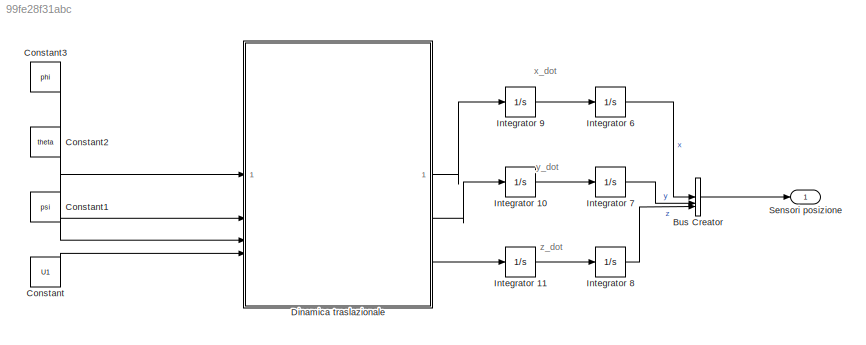
MODEL slx_99fe28f31abc
KIND model
CONFIG AbsTol = auto
CONFIG EnableMultiTasking = off
CONFIG FixedStep = auto
CONFIG MaxStep = auto
CONFIG MinStep = auto
CONFIG RelTol = 1e-3
CONFIG SampleTimeConstraint = Unconstrained
CONFIG SolverName = VariableStepAuto
CONFIG StartTime = 0.0
CONFIG StopTime = 10.0
BLOCK [BusCreator] Bus Creator
  DisplayOption = bar
  InheritFromInputs = on
  Inputs = 3
BLOCK [Constant] Constant
  Value = U1
BLOCK [Constant] Constant1
  Value = psi
BLOCK [Constant] Constant2
  Value = theta
BLOCK [Constant] Constant3
  Value = phi
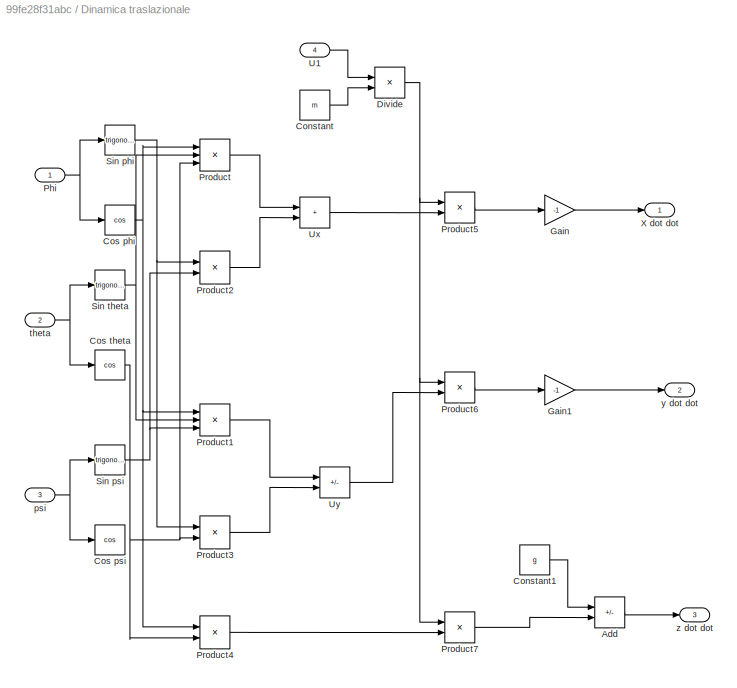
BLOCK [SubSystem] Dinamica traslazionale
BLOCK [Sum] Dinamica traslazionale/Add
  IconShape = rectangular
  Inputs = +-
BLOCK [Constant] Dinamica traslazionale/Constant
  Value = m
BLOCK [Constant] Dinamica traslazionale/Constant1
  Value = g
BLOCK [Trigonometry] Dinamica traslazionale/Cos phi
  Operator = cos
BLOCK [Trigonometry] Dinamica traslazionale/Cos psi
  Operator = cos
BLOCK [Trigonometry] Dinamica traslazionale/Cos theta
  Operator = cos
BLOCK [Product] Dinamica traslazionale/Divide
  Inputs = */
BLOCK [Gain] Dinamica traslazionale/Gain
  Gain = -1
BLOCK [Gain] Dinamica traslazionale/Gain1
  Gain = -1
BLOCK [Inport] Dinamica traslazionale/Phi
BLOCK [Product] Dinamica traslazionale/Product
  Inputs = 3
BLOCK [Product] Dinamica traslazionale/Product1
  Inputs = 3
BLOCK [Product] Dinamica traslazionale/Product2
BLOCK [Product] Dinamica traslazionale/Product3
BLOCK [Product] Dinamica traslazionale/Product4
BLOCK [Product] Dinamica traslazionale/Product5
BLOCK [Product] Dinamica traslazionale/Product6
BLOCK [Product] Dinamica traslazionale/Product7
BLOCK [Trigonometry] Dinamica traslazionale/Sin phi
BLOCK [Trigonometry] Dinamica traslazionale/Sin psi
BLOCK [Trigonometry] Dinamica traslazionale/Sin theta
BLOCK [Inport] Dinamica traslazionale/U1
  Port = 4
BLOCK [Sum] Dinamica traslazionale/Ux
  IconShape = rectangular
BLOCK [Sum] Dinamica traslazionale/Uy
  IconShape = rectangular
  Inputs = +-
BLOCK [Outport] Dinamica traslazionale/X dot dot
BLOCK [Inport] Dinamica traslazionale/psi
  Port = 3
BLOCK [Inport] Dinamica traslazionale/theta
  Port = 2
BLOCK [Outport] Dinamica traslazionale/y dot dot
  Port = 2
BLOCK [Outport] Dinamica traslazionale/z dot dot
  Port = 3
BLOCK [Integrator] Integrator 10
BLOCK [Integrator] Integrator 11
BLOCK [Integrator] Integrator 6
  ContinuousStateAttributes = 'X_out'
BLOCK [Integrator] Integrator 7
  ContinuousStateAttributes = 'Y_out'
BLOCK [Integrator] Integrator 8
  ContinuousStateAttributes = 'Z_out'
BLOCK [Integrator] Integrator 9
BLOCK [Outport] Sensori posizione
ANNOTATION (root): x_dot
ANNOTATION (root): y_dot
ANNOTATION (root): z_dot
LINE Bus Creator:1 -> Sensori posizione:1
LINE Constant1:1 -> Dinamica traslazionale:3
LINE Constant2:1 -> Dinamica traslazionale:2
LINE Constant3:1 -> Dinamica traslazionale:1
LINE Constant:1 -> Dinamica traslazionale:4
LINE Dinamica traslazionale/Add:1 -> Dinamica traslazionale/z dot dot:1
LINE Dinamica traslazionale/Constant1:1 -> Dinamica traslazionale/Add:1
LINE Dinamica traslazionale/Constant:1 -> Dinamica traslazionale/Divide:2
NET Dinamica traslazionale/Cos phi:1 -> Dinamica traslazionale/Product1:1, Dinamica traslazionale/Product4:1, Dinamica traslazionale/Product:1
NET Dinamica traslazionale/Cos theta:1 -> Dinamica traslazionale/Product3:2, Dinamica traslazionale/Product4:2, Dinamica traslazionale/Product:3
NET Dinamica traslazionale/Divide:1 -> Dinamica traslazionale/Product5:1, Dinamica traslazionale/Product6:1, Dinamica traslazionale/Product7:1
LINE Dinamica traslazionale/Gain1:1 -> Dinamica traslazionale/y dot dot:1
LINE Dinamica traslazionale/Gain:1 -> Dinamica traslazionale/X dot dot:1
NET Dinamica traslazionale/Phi:1 -> Dinamica traslazionale/Cos phi:1, Dinamica traslazionale/Sin phi:1
LINE Dinamica traslazionale/Product1:1 -> Dinamica traslazionale/Uy:1
LINE Dinamica traslazionale/Product2:1 -> Dinamica traslazionale/Ux:2
LINE Dinamica traslazionale/Product3:1 -> Dinamica traslazionale/Uy:2
LINE Dinamica traslazionale/Product4:1 -> Dinamica traslazionale/Product7:2
LINE Dinamica traslazionale/Product5:1 -> Dinamica traslazionale/Gain:1
LINE Dinamica traslazionale/Product6:1 -> Dinamica traslazionale/Gain1:1
LINE Dinamica traslazionale/Product7:1 -> Dinamica traslazionale/Add:2
LINE Dinamica traslazionale/Product:1 -> Dinamica traslazionale/Ux:1
NET Dinamica traslazionale/Sin phi:1 -> Dinamica traslazionale/Product2:1, Dinamica traslazionale/Product3:1
NET Dinamica traslazionale/Sin psi:1 -> Dinamica traslazionale/Product1:3, Dinamica traslazionale/Product2:2
NET Dinamica traslazionale/Sin theta:1 -> Dinamica traslazionale/Product1:2, Dinamica traslazionale/Product:2
LINE Dinamica traslazionale/U1:1 -> Dinamica traslazionale/Divide:1
LINE Dinamica traslazionale/Ux:1 -> Dinamica traslazionale/Product5:2
LINE Dinamica traslazionale/Uy:1 -> Dinamica traslazionale/Product6:2
NET Dinamica traslazionale/psi:1 -> Dinamica traslazionale/Cos psi:1, Dinamica traslazionale/Sin psi:1
NET Dinamica traslazionale/theta:1 -> Dinamica traslazionale/Cos theta:1, Dinamica traslazionale/Sin theta:1
LINE Dinamica traslazionale:1 -> Integrator 9:1
LINE Dinamica traslazionale:2 -> Integrator 10:1
LINE Dinamica traslazionale:3 -> Integrator 11:1
LINE Integrator 10:1 -> Integrator 7:1
LINE Integrator 11:1 -> Integrator 8:1
LINE Integrator 6:1 -> Bus Creator:1
LINE Integrator 7:1 -> Bus Creator:2
LINE Integrator 8:1 -> Bus Creator:3
LINE Integrator 9:1 -> Integrator 6:1
note: NET lines group one-source signal fan-out (src -> all destinations, sorted); 1:1 wires keep LINE
